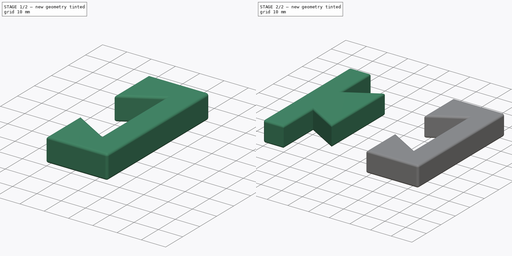
[diagram: build sequence overview — one tinted view per stage of 2, left to right]
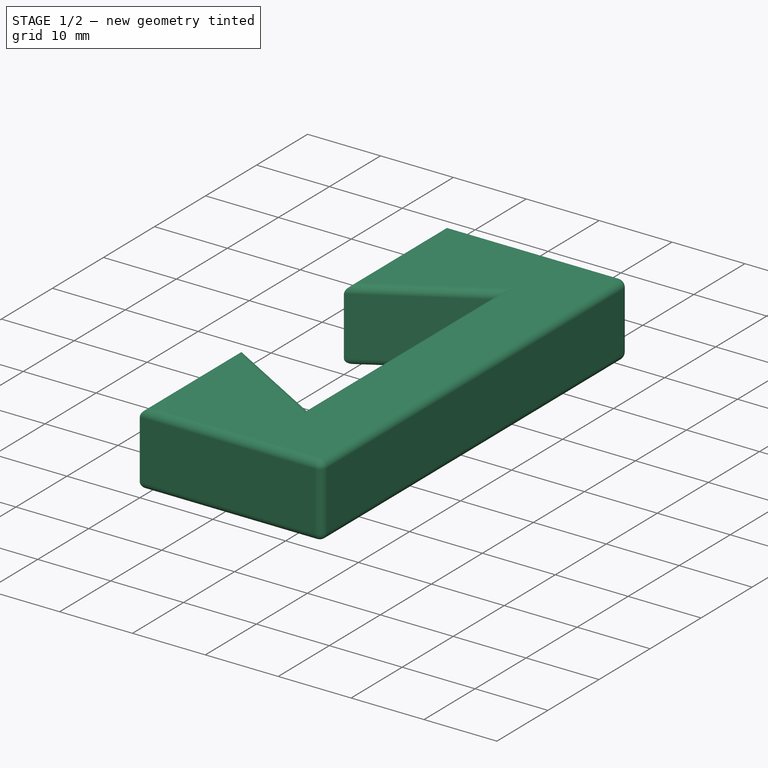
[diagram: stage 1 of 2 — iso view after this stage's code; geometry added in this stage tinted green]
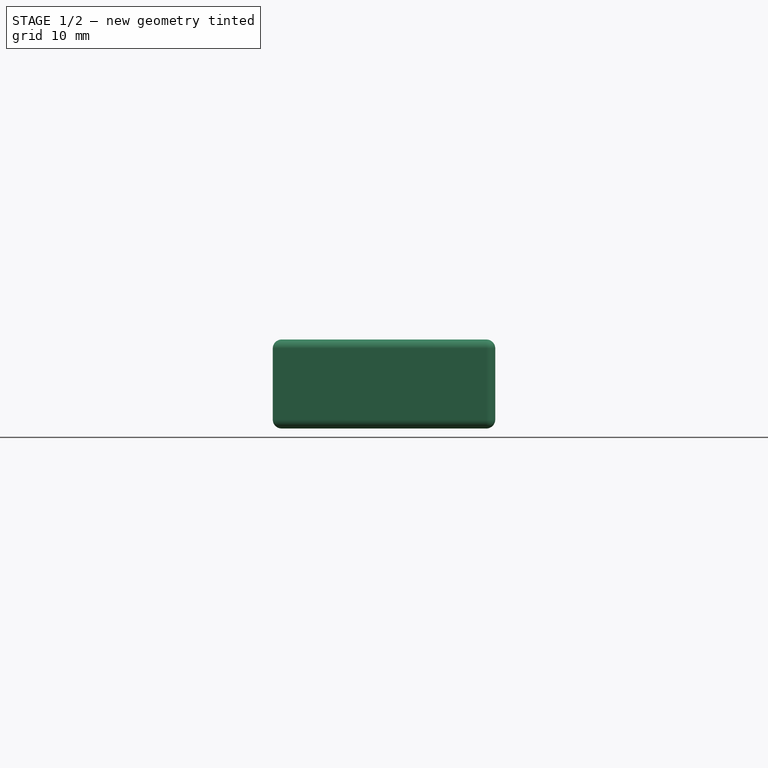
[diagram: stage 1 of 2 — front view after this stage's code; geometry added in this stage tinted green]
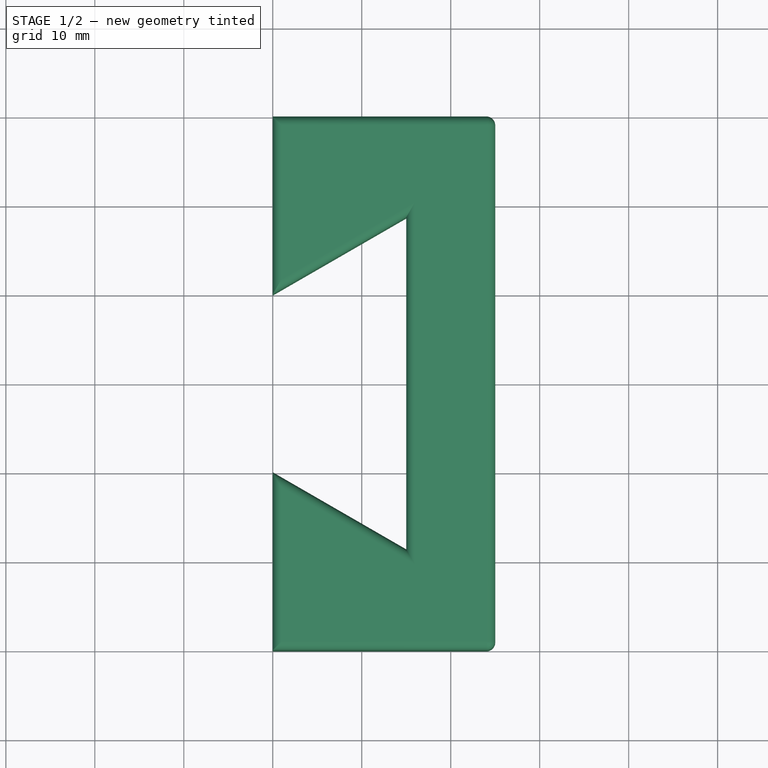
[diagram: stage 1 of 2 — top view after this stage's code; geometry added in this stage tinted green]
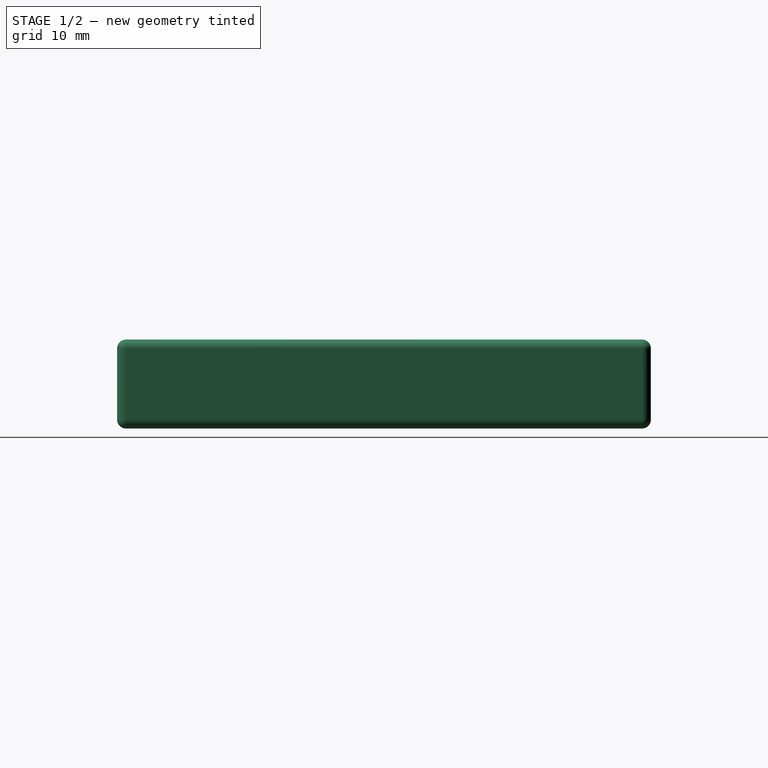
[diagram: stage 1 of 2 — right view after this stage's code; geometry added in this stage tinted green]
FCSTD DOCUMENT  (FreeCAD 1.0R39319 (Git))
Label: joined-part
License: All rights reserved
LicenseURL: https://en.wikipedia.org/wiki/All_rights_reserved
objects: Sketcher::SketchObject×2, PartDesign::Pad×2, PartDesign::Fillet×2, PartDesign::Body×2
note: 18 computed .brp shape members not serialized (recipe doc carries the construction recipe); baked Part::Feature solids carry a one-line shape summary decoded from their .brp

FEATURE [Sketcher::SketchObject] Sketch
  ArcFitTolerance = 1e-06
  AttachmentSupport = -> [XY_Plane]
  FullyConstrained = true
  MakeInternals = false
  MapMode = 5
  sketch-geometry (8):
    g0: LineSegment StartX=3.6e-15 StartY=-30 StartZ=0 EndX=3.9e-15 EndY=-10 EndZ=0
    g1: LineSegment StartX=3.9e-15 StartY=-10 StartZ=0 EndX=15 EndY=-18.6603 EndZ=0
    g2: LineSegment StartX=15 StartY=-18.6603 StartZ=0 EndX=15 EndY=18.6603 EndZ=0
    g3: LineSegment StartX=15 StartY=18.6603 StartZ=0 EndX=-3.6e-15 EndY=10 EndZ=0
    g4: LineSegment StartX=-3.6e-15 StartY=10 StartZ=0 EndX=-1.3e-15 EndY=30 EndZ=0
    g5: LineSegment StartX=-1.3e-15 StartY=30 StartZ=0 EndX=25 EndY=30 EndZ=0
    g6: LineSegment StartX=25 StartY=30 StartZ=0 EndX=25 EndY=-30 EndZ=0
    g7: LineSegment StartX=25 StartY=-30 StartZ=0 EndX=3.6e-15 EndY=-30 EndZ=0
  constraints (24):
    c: Coincident(g0,g1)
    c: Coincident(g1,g2)
    c: Coincident(g2,g3)
    c: Coincident(g3,g4)
    c: Coincident(g4,g5)
    c: Coincident(g5,g6)
    c: Coincident(g6,g7)
    c: Coincident(g7,g0)
    c: Angle(g4,g5) = 1.5708
    c: Angle(g5,g6) = 1.5708
    c: Angle(g6,g7) = 1.5708
    c: Angle(g6,g-1) = 1.5708
    c: Angle(g7,g0) = 1.5708
    c: Angle(g-1,g2) = 1.5708
    c: Angle(g3,g4) = 1.0472
    c: Angle(g0,g1) = 1.0472
    c: DistanceX(g-1,g5) = 25
    c: DistanceX(g4,g5) = 25
    c: DistanceX(g0,g6) = 25
    c: DistanceX(g-1,g2) = 15
    c: DistanceY(g-1,g4) = 30
    c: DistanceY(g-1,g3) = 10
    c: DistanceY(g0,g-1) = 10
    c: DistanceY(g0,g-1) = 30
FEATURE [PartDesign::Pad] Pad
  Direction = (0,0,1)
  Length = 10
  Length2 = 10
  Profile = -> Sketch
  ReferenceAxis = -> Sketch [N_Axis]
  Refine = true
  Suppressed = false
  Type = 0
FEATURE [PartDesign::Body] Body001
  AllowCompound = false
  Group = -> [Sketch002,Pad001,Fillet]
  Origin = -> Origin001
  Tip = -> Fillet
FEATURE [PartDesign::Fillet] Fillet001
  Base = -> Pad [Face7,Edge24,Edge23,Edge19,Edge18,Face9,Face10]
  BaseFeature = -> Pad
  Radius = 1
  Refine = true
  SupportTransform = false
  Suppressed = false
  UseAllEdges = false
FEATURE [PartDesign::Body] Body
  AllowCompound = false
  Group = -> [Sketch,Pad,Fillet001]
  Origin = -> Origin
  Tip = -> Fillet001
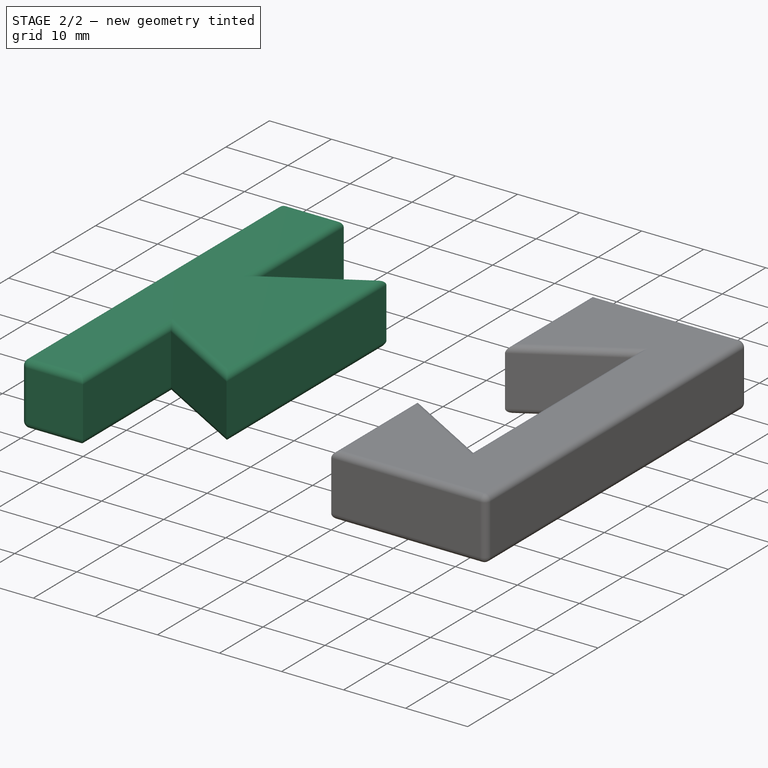
[diagram: stage 2 of 2 — iso view after this stage's code; geometry added in this stage tinted green]
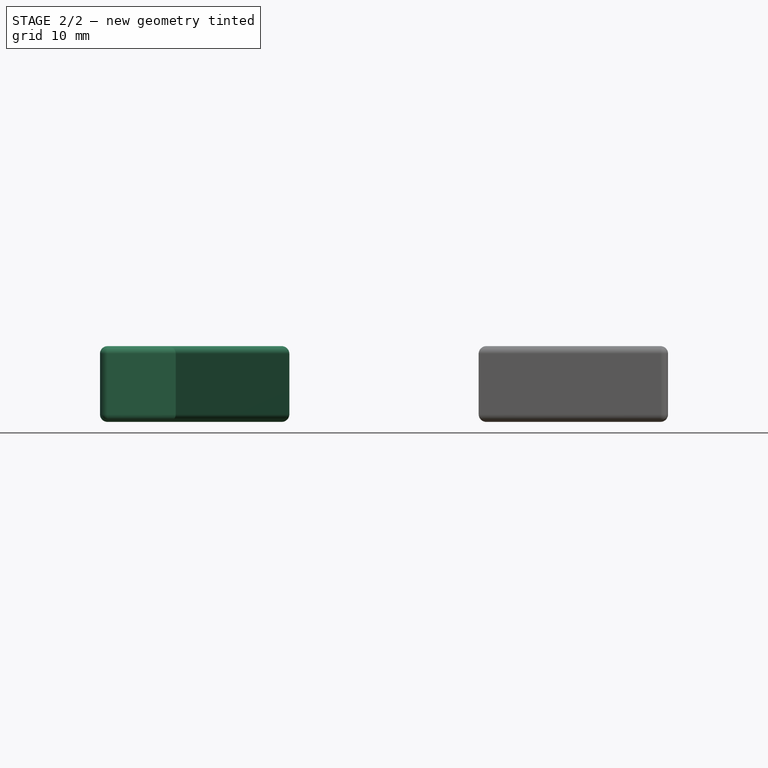
[diagram: stage 2 of 2 — front view after this stage's code; geometry added in this stage tinted green]
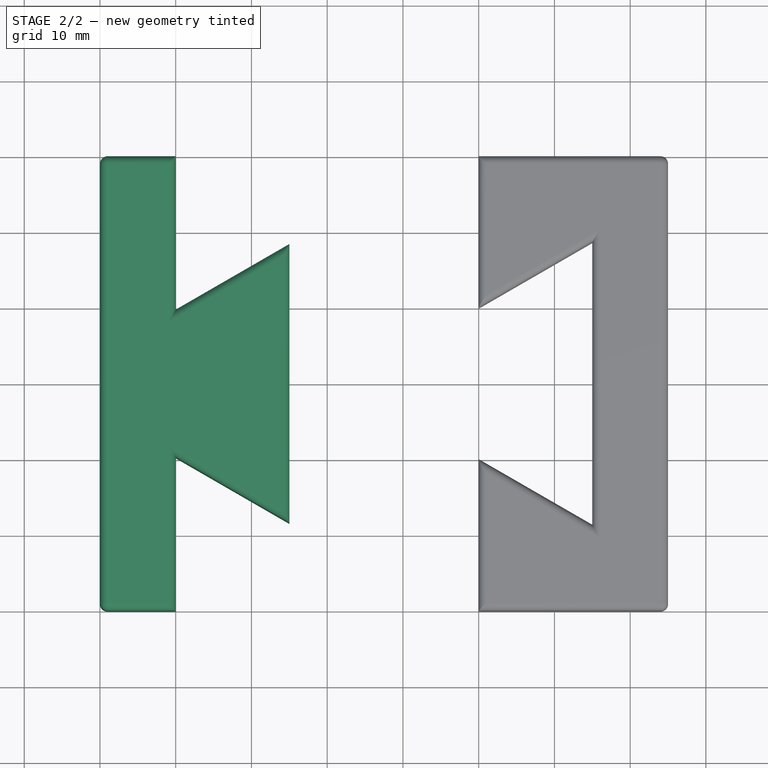
[diagram: stage 2 of 2 — top view after this stage's code; geometry added in this stage tinted green]
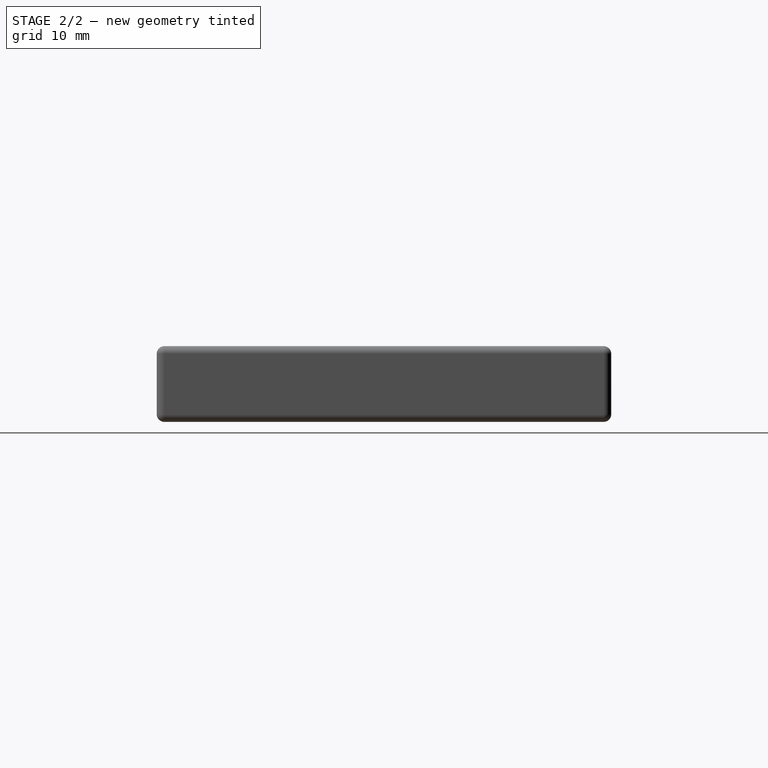
[diagram: stage 2 of 2 — right view after this stage's code; geometry added in this stage tinted green]
FEATURE [Sketcher::SketchObject] Sketch002
  ArcFitTolerance = 1e-06
  AttachmentSupport = -> [XY_Plane001]
  FullyConstrained = true
  MakeInternals = false
  MapMode = 5
  sketch-geometry (8):
    g0: LineSegment StartX=-50 StartY=-30 StartZ=0 EndX=-50 EndY=30 EndZ=0
    g1: LineSegment StartX=-50 StartY=30 StartZ=0 EndX=-40 EndY=30 EndZ=0
    g2: LineSegment StartX=-40 StartY=30 StartZ=0 EndX=-40 EndY=9.75 EndZ=0
    g3: LineSegment StartX=-40 StartY=9.75 StartZ=0 EndX=-25 EndY=18.4102 EndZ=0
    g4: LineSegment StartX=-25 StartY=18.4102 StartZ=0 EndX=-25 EndY=-18.4102 EndZ=0
    g5: LineSegment StartX=-25 StartY=-18.4102 StartZ=0 EndX=-40 EndY=-9.75 EndZ=0
    g6: LineSegment StartX=-40 StartY=-9.75 StartZ=0 EndX=-40 EndY=-30 EndZ=0
    g7: LineSegment StartX=-40 StartY=-30 StartZ=0 EndX=-50 EndY=-30 EndZ=0
  constraints (24):
    c: Coincident(g0,g1)
    c: Coincident(g1,g2)
    c: Coincident(g2,g3)
    c: Coincident(g3,g4)
    c: Coincident(g4,g5)
    c: Coincident(g5,g6)
    c: Coincident(g6,g7)
    c: Coincident(g7,g0)
    c: Angle(g-1,g0) = 1.5708
    c: Angle(g0,g1) = 1.5708
    c: Angle(g1,g2) = 1.5708
    c: Angle(g6,g7) = 1.5708
    c: Angle(g7,g0) = 1.5708
    c: Angle(g4,g-1) = 1.5708
    c: Angle(g3,g2) = 1.0472
    c: Angle(g6,g5) = 1.0472
    c: DistanceY(g-1,g0) = 30
    c: DistanceY(g0,g-1) = 30
    c: DistanceY(g-1,g2) = 9.75
    c: DistanceX(g0,g1) = 10
    c: DistanceX(g0,g6) = 10
    c: DistanceX(g6,g4) = 15
    c: DistanceX(g0,g-1) = 50
    c: DistanceY(g5,g-1) = 9.75
FEATURE [PartDesign::Pad] Pad001
  Direction = (0,0,1)
  Length = 10
  Length2 = 10
  Profile = -> Sketch002
  ReferenceAxis = -> Sketch002 [N_Axis]
  Refine = true
  Suppressed = false
  Type = 0
FEATURE [PartDesign::Fillet] Fillet
  Base = -> Pad001 [Face1,Edge6,Edge7,Edge23,Edge24,Face9,Face10]
  BaseFeature = -> Pad001
  Radius = 1
  Refine = true
  SupportTransform = false
  Suppressed = false
  UseAllEdges = false
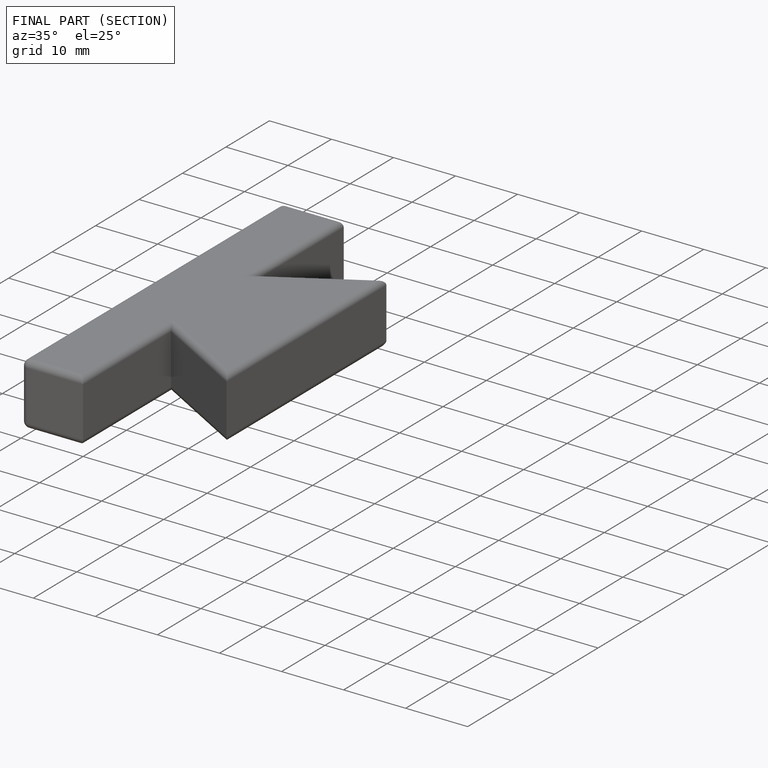
[diagram: finished part — half-section view (interior)]
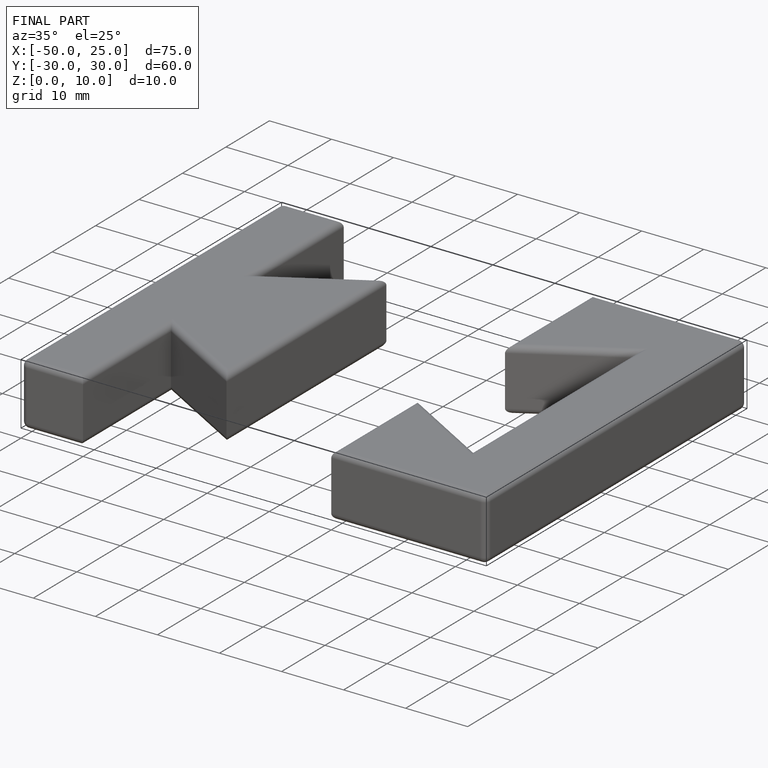
[diagram: finished part — iso view with bounding-box wireframe]
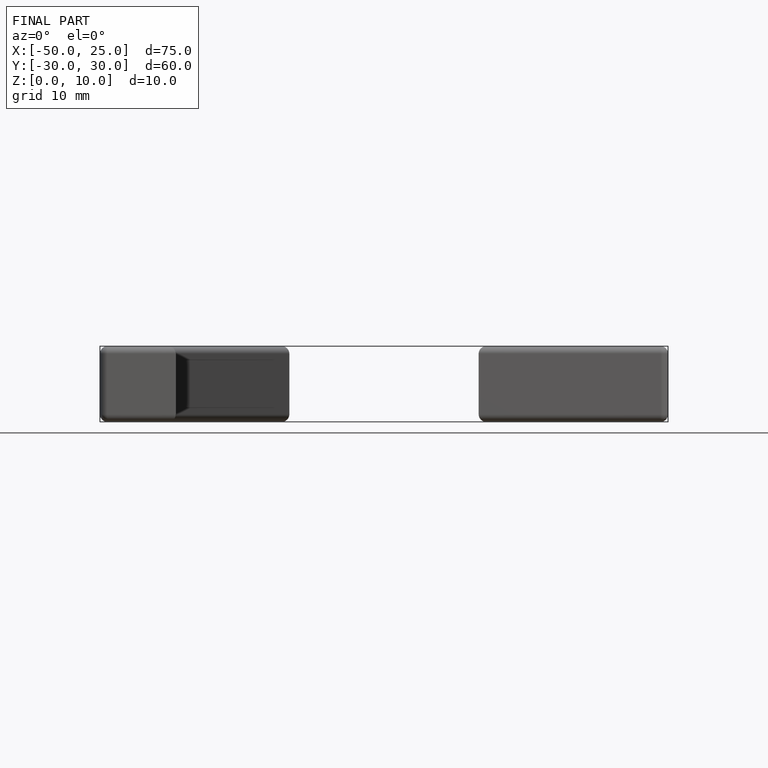
[diagram: finished part — front view with bounding-box wireframe]
